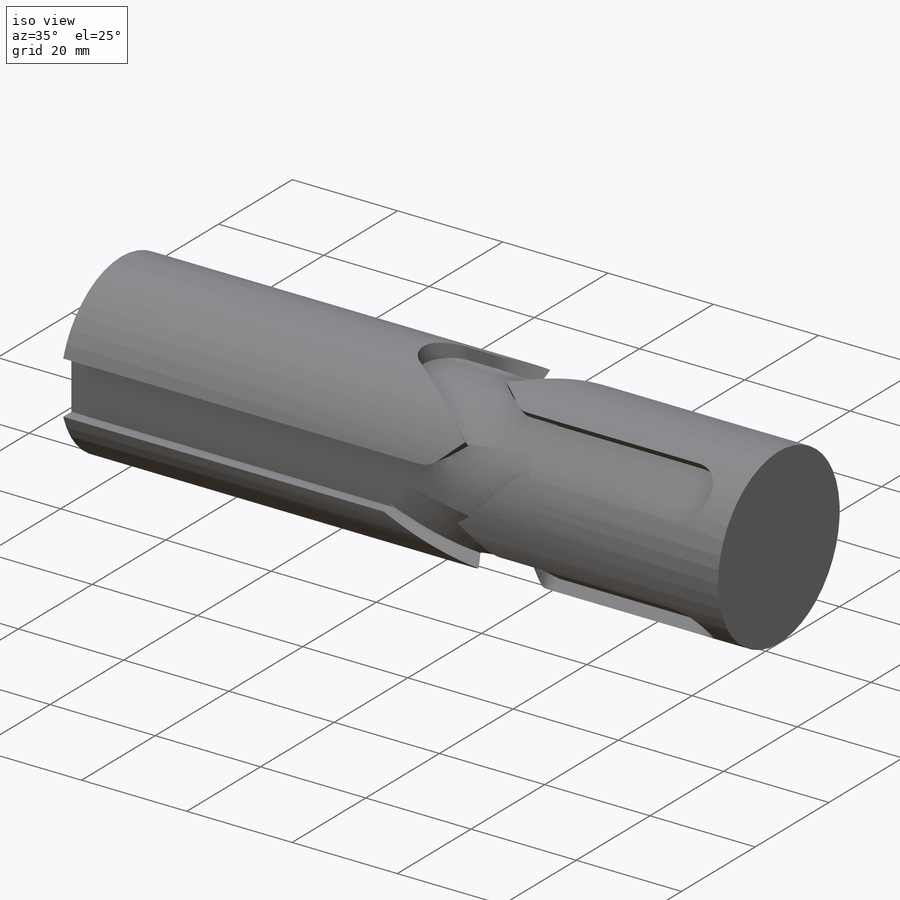
[diagram: iso view]
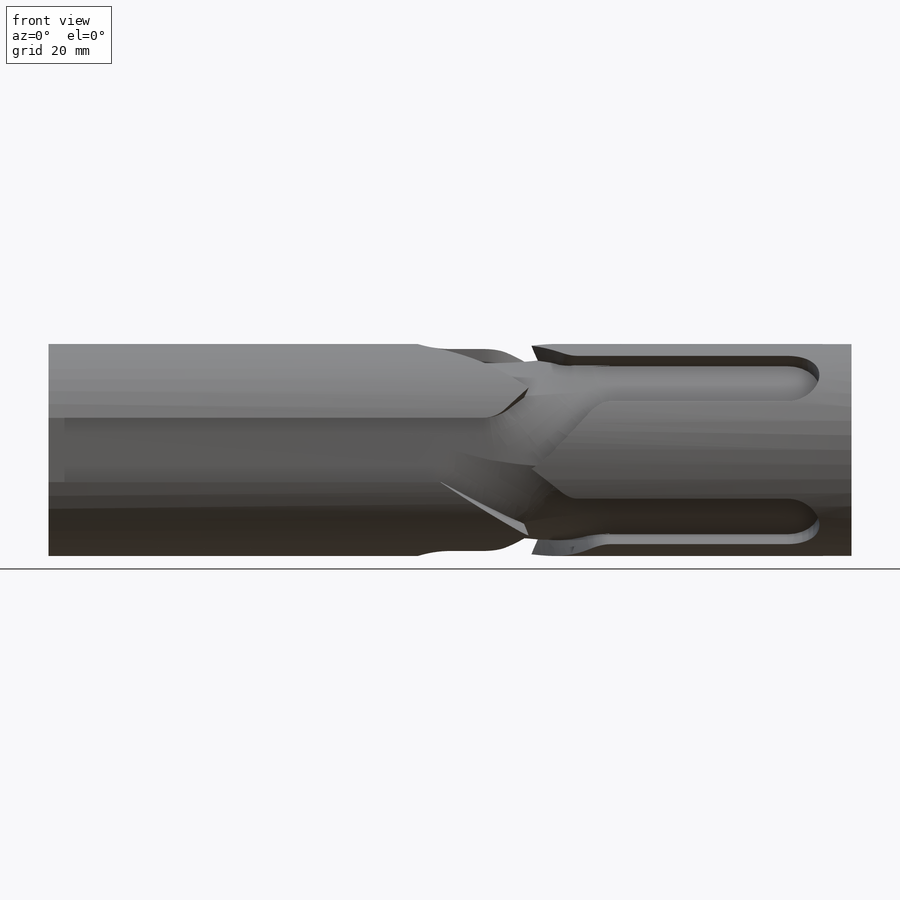
[diagram: front view]
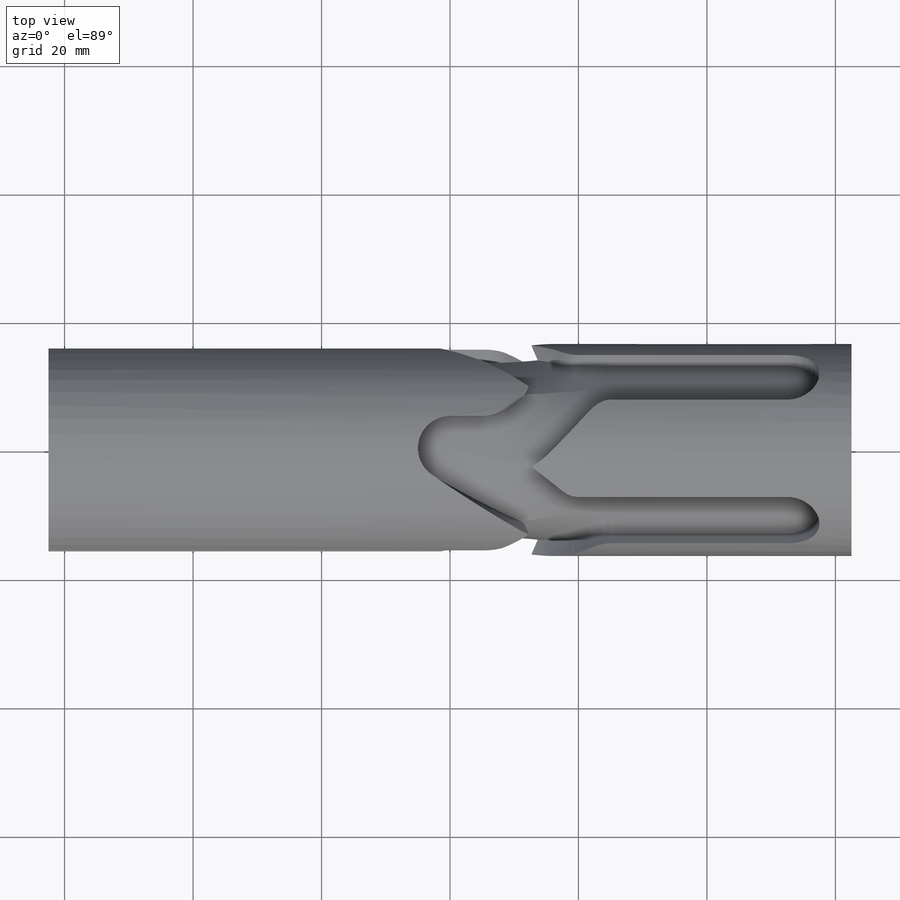
[diagram: top view]
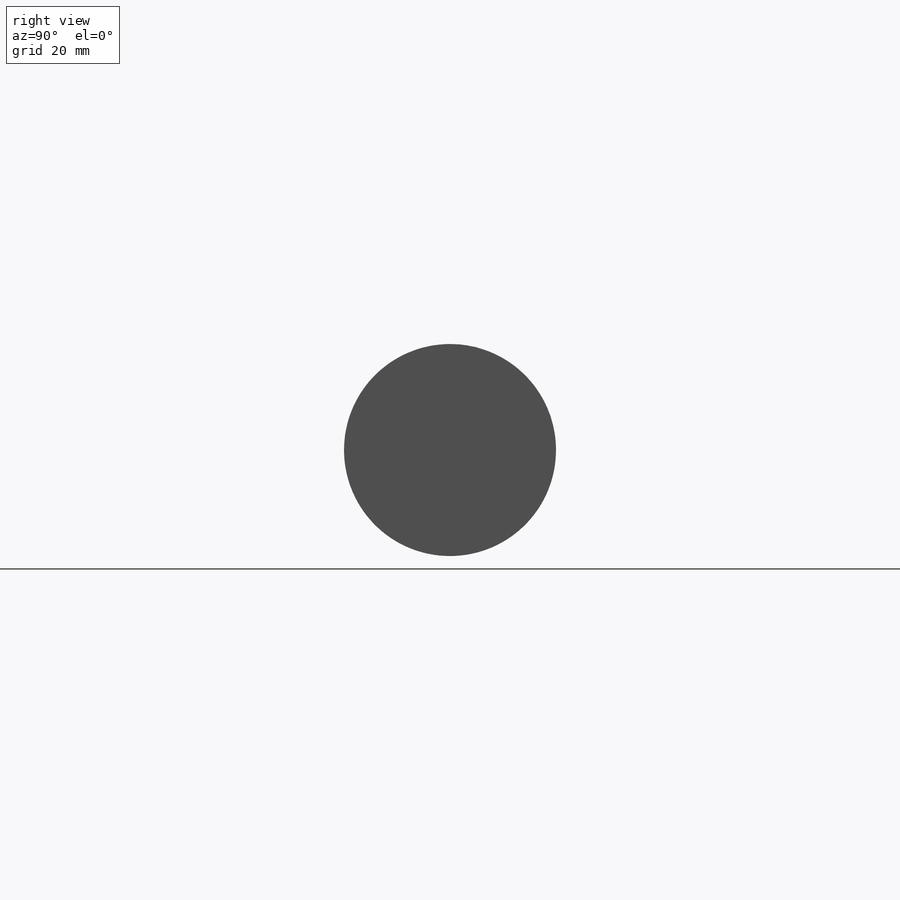
[diagram: right view]
SOLIDWORKS PART (.sldprt)
format: sldprt  version: not decoded by parser v0  size: 1,166,336 bytes
history: native  units: mm
features: sketch x17, plane x6, extrude x2, cut_revolve x2, pattern_circular x2, mirror x2, material x1, surface_op x1, delete_body x1, cut_extrude x1 (+8 scaffold rows collapsed)
feature tree (43):
  scaffold x8  (default folders/planes/origin — collapsed)
  material  "Messing"
  plane  "Ebene vorne"
  plane  "Ebene oben"
  plane  "Ebene rechts"
  sketch  "Skizze1"  dims[c1.D1=~103.672558mm c1.D2=10.0mm c1.D3=10.0mm c1.D4=~39.832226deg c1.D5=10.0mm c1.D6=~39.832226deg c1.D7=10.0mm c1.D8=10.0mm c1.D9=~12.95907mm c1.D10=~12.95907mm c2.D1=103.6725mm]
  sketch  "Skizze2"  dims[D1=33.0mm]
  extrude  "Aufsatz-Linear austragen1"  Depth=125mm
  plane  "Ebene3"  Offset=10mm
  sketch  "Skizze13"  dims[c1.D1=16.5mm c2.D1=45.0deg c2.D2=33.0mm c3.D2=90.0deg]
  sketch  "Skizze3"  dims[c1.D5=10.0mm c1.D1=~12.95907mm c1.D2=30.0mm c1.D3=10.0mm c2.D2=~64.353437mm c3.D2=135.0deg c3.D4=30.0mm c3.D6=5.0mm c3.D1=12.5mm c3.D7=10.0mm]
  sketch  "3D-Skizze2"
  plane  "Ebene2"
  sketch  "Skizze8"  dims[c1.D1=3.0mm c1.D2=1.0mm c2.D1=5.0mm]
  sketch  "Skizze9"  dims[D1=6.0mm]
  cut_revolve  "Schnitt-Rotation2"  Angle=360deg
  pattern_circular  "Kreismuster27"  Count=4 Angle=360deg
  sketch  "Skizze23"  dims[c1.D2=10.0mm c1.D1=~130.618043mm c2.D1=35.0deg]
  sketch  "Skizze24"  dims[D1=0.0mm]
  surface_op  "Oberfläche-Linear austragen4"
  delete_body  "Körper-Löschen4"
  plane  "Ebene5"
  sketch  "Skizze26"  dims[D1=3.0mm D2=0.5mm]
  extrude  "Oberfläche-Austragung10"  [1 undecoded]
  pattern_circular  "Kreismuster35"  Count=4 Angle=360deg
  sketch  "Schnitt-Wanddicke auftragen13"  dims[D1=5.0mm]
  sketch  "Schnitt-Wanddicke auftragen14"  dims[D1=5.0mm]
  sketch  "Schnitt-Wanddicke auftragen15"  dims[D1=5.0mm]
  sketch  "Schnitt-Wanddicke auftragen16"  dims[D1=5.0mm]
  sketch  "Skizze29"  dims[D1=0.0mm D2=0.0mm]
  sketch  "Skizze31"  dims[D1=6.0mm]
  cut_revolve  "Schnitt-Rotation7"  Angle=360deg
  mirror  "Spiegeln8"
  sketch  "Skizze32"  dims[D1=10.0mm D2=6.0mm]
  cut_extrude  "Schnitt-Linear austragen1"  [1 undecoded]
  mirror  "Spiegeln10"
decode coverage: 21 of 28 modeling features carry decoded parameters
note: ~ marks probable driven/reference dimensions
note: 2 parameter values undecoded
note: suppression state not decoded; provenance and decode notes live in map.json
